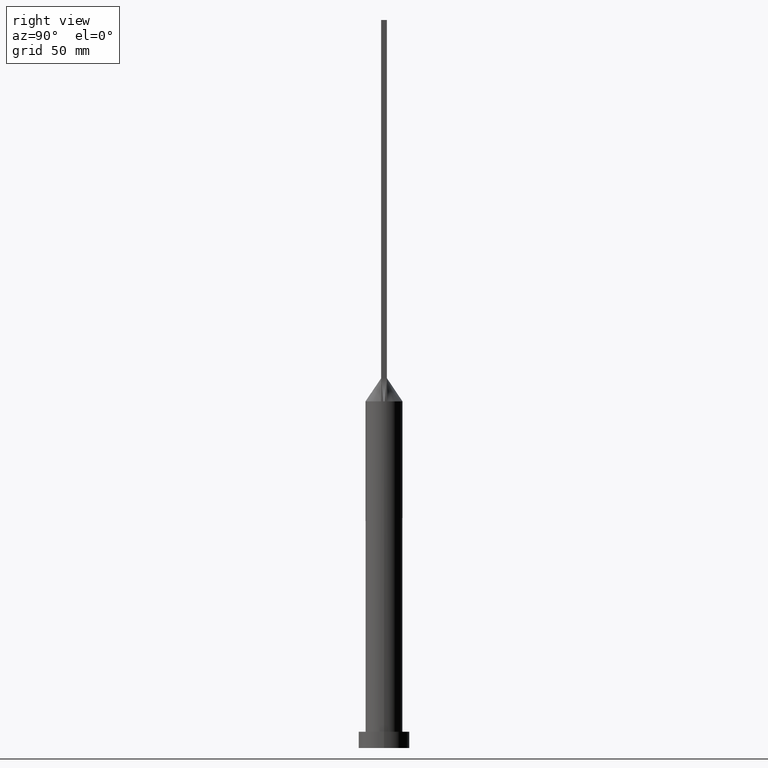
[diagram: clean part render]
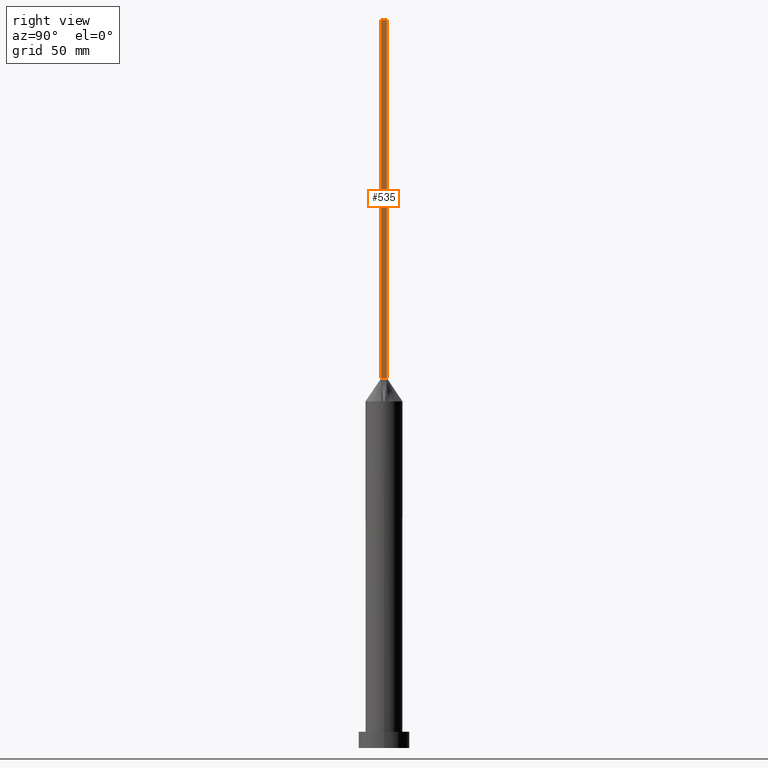
[diagram: same view with one face highlighted and labeled with its STEP entity id]
A machine part, right view. The second image highlights one B-rep face of the part: STEP entity #535.
In plain terms, the highlighted planar face has unit normal (-1, 0, 0).
Its self-contained STEP definition (entity closure, byte-faithful):
#13 = EDGE_CURVE ( 'NONE', #48, #161, #282, .T. ) ;
#30 = ORIENTED_EDGE ( 'NONE', *, *, #193, .F. ) ;
#33 = EDGE_CURVE ( 'NONE', #159, #214, #289, .T. ) ;
#36 = DIRECTION ( 'NONE',  ( -0.000000000000000000, -0.000000000000000000, -1.000000000000000000 ) ) ;
#37 = CARTESIAN_POINT ( 'NONE',  ( 7.750000000000000000, -1.249999999999999778, 315.0000000000000000 ) ) ;
#42 = LINE ( 'NONE', #174, #453 ) ;
#48 = VERTEX_POINT ( 'NONE', #185 ) ;
#52 = LINE ( 'NONE', #199, #213 ) ;
#57 = EDGE_LOOP ( 'NONE', ( #215, #569, #30, #426 ) ) ;
#59 = VECTOR ( 'NONE', #384, 1000.000000000000000 ) ;
#99 = DIRECTION ( 'NONE',  ( -1.000000000000000000, 0.000000000000000000, 0.000000000000000000 ) ) ;
#147 = DIRECTION ( 'NONE',  ( 0.000000000000000000, 1.000000000000000000, 0.000000000000000000 ) ) ;
#159 = VERTEX_POINT ( 'NONE', #230 ) ;
#161 = VERTEX_POINT ( 'NONE', #438 ) ;
#174 = CARTESIAN_POINT ( 'NONE',  ( 7.750000000000000000, 1.250000000000000222, 160.0000000000000000 ) ) ;
#185 = CARTESIAN_POINT ( 'NONE',  ( 7.750000000000000000, -1.249999999999999778, 315.0000000000000000 ) ) ;
#193 = EDGE_CURVE ( 'NONE', #48, #159, #52, .T. ) ;
#199 = CARTESIAN_POINT ( 'NONE',  ( 7.750000000000000000, -1.249999999999999778, 315.0000000000000000 ) ) ;
#213 = VECTOR ( 'NONE', #147, 1000.000000000000000 ) ;
#214 = VERTEX_POINT ( 'NONE', #348 ) ;
#215 = ORIENTED_EDGE ( 'NONE', *, *, #281, .T. ) ;
#230 = CARTESIAN_POINT ( 'NONE',  ( 7.750000000000000000, 1.250000000000000222, 315.0000000000000000 ) ) ;
#232 = DIRECTION ( 'NONE',  ( 0.000000000000000000, 0.000000000000000000, 1.000000000000000000 ) ) ;
#281 = EDGE_CURVE ( 'NONE', #161, #214, #42, .T. ) ;
#282 = LINE ( 'NONE', #387, #59 ) ;
#289 = LINE ( 'NONE', #532, #634 ) ;
#348 = CARTESIAN_POINT ( 'NONE',  ( 7.750000000000000000, 1.250000000000000222, 160.0000000000000000 ) ) ;
#384 = DIRECTION ( 'NONE',  ( -0.000000000000000000, -0.000000000000000000, -1.000000000000000000 ) ) ;
#387 = CARTESIAN_POINT ( 'NONE',  ( 7.750000000000000000, -1.249999999999999778, 315.0000000000000000 ) ) ;
#426 = ORIENTED_EDGE ( 'NONE', *, *, #13, .T. ) ;
#437 = DIRECTION ( 'NONE',  ( -0.000000000000000000, 1.000000000000000000, -0.000000000000000000 ) ) ;
#438 = CARTESIAN_POINT ( 'NONE',  ( 7.750000000000000000, -1.249999999999999778, 160.0000000000000000 ) ) ;
#453 = VECTOR ( 'NONE', #437, 1000.000000000000000 ) ;
#461 = AXIS2_PLACEMENT_3D ( 'NONE', #37, #99, #232 ) ;
#502 = PLANE ( 'NONE',  #461 ) ;
#532 = CARTESIAN_POINT ( 'NONE',  ( 7.750000000000000000, 1.250000000000000222, 315.0000000000000000 ) ) ;
#535 = ADVANCED_FACE ( 'NONE', ( #633 ), #502, .F. ) ;
#569 = ORIENTED_EDGE ( 'NONE', *, *, #33, .F. ) ;
#633 = FACE_OUTER_BOUND ( 'NONE', #57, .T. ) ;
#634 = VECTOR ( 'NONE', #36, 1000.000000000000000 ) ;